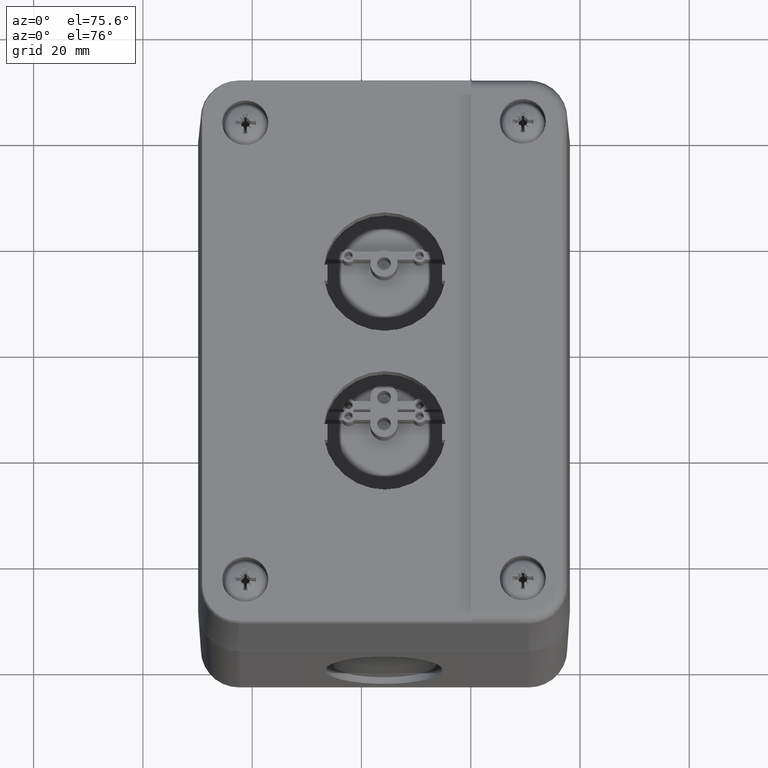
[diagram: clean part render]
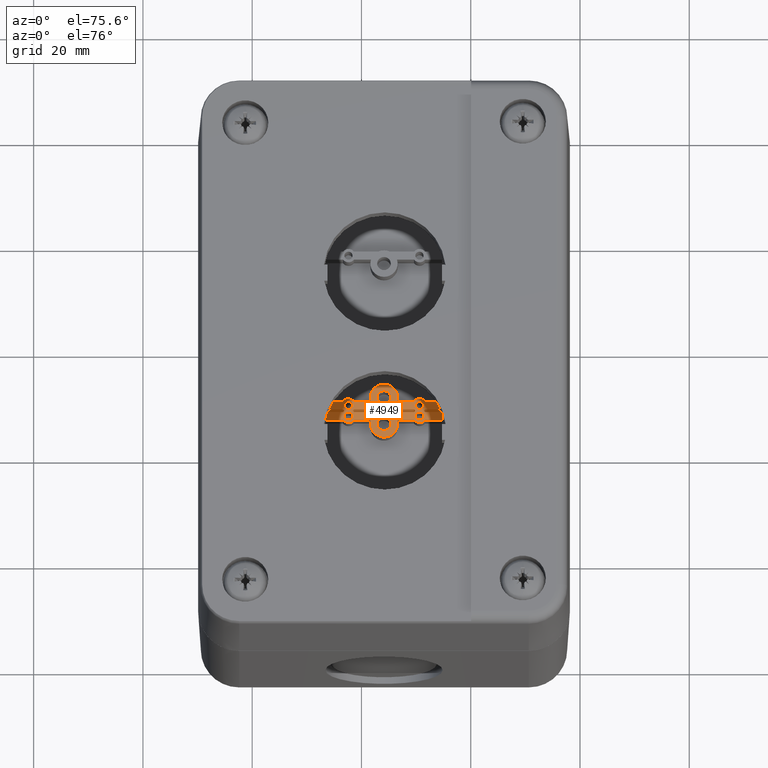
[diagram: same view with one face highlighted and labeled with its STEP entity id]
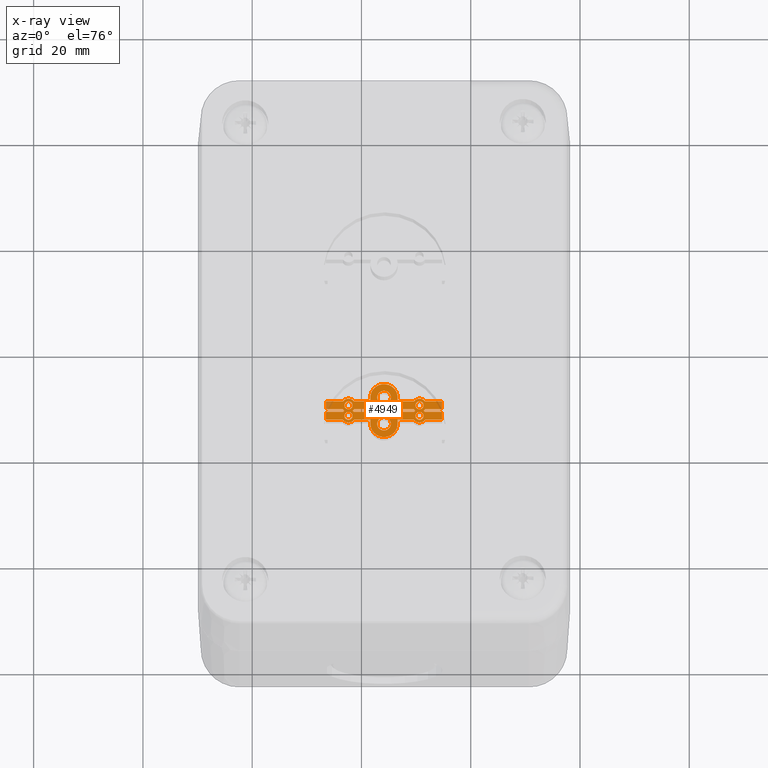
[diagram: x-ray of the same camera — body ghosted, the highlighted face saturated]
A machine part, auxiliary view. The second image highlights one B-rep face of the part: STEP entity #4949.
The next image is the same camera in x-ray: the body ghosted, the highlighted face saturated — about 4% of this face is hidden behind the body in this view.
In plain terms, the highlighted planar face has unit normal (0, 0, 1).
Its self-contained STEP definition (entity closure, byte-faithful):
#3449=CARTESIAN_POINT('',(-14.622549297178537,25.422435103463556,5.700000000000014));
#3450=VERTEX_POINT('',#3449);
#3451=CARTESIAN_POINT('',(-15.872549297178537,25.422435103463556,5.700000000000014));
#3452=DIRECTION('',(0.0,0.0,-1.0));
#3453=DIRECTION('',(-1.0,0.0,0.0));
#3454=AXIS2_PLACEMENT_3D('',#3451,#3452,#3453);
#3455=CIRCLE('',#3454,1.250000000000000);
#3456=EDGE_CURVE('',#3450,#3450,#3455,.T.);
#3477=CARTESIAN_POINT('',(-14.622549297178535,30.422435103463560,5.700000000000014));
#3478=VERTEX_POINT('',#3477);
#3479=CARTESIAN_POINT('',(-15.872549297178535,30.422435103463560,5.700000000000014));
#3480=DIRECTION('',(0.0,0.0,-1.0));
#3481=DIRECTION('',(-1.0,0.0,0.0));
#3482=AXIS2_PLACEMENT_3D('',#3479,#3480,#3481);
#3483=CIRCLE('',#3482,1.250000000000000);
#3484=EDGE_CURVE('',#3478,#3478,#3483,.T.);
#3505=CARTESIAN_POINT('',(-21.622549297178537,26.922435103463570,5.700000000000014));
#3506=VERTEX_POINT('',#3505);
#3507=CARTESIAN_POINT('',(-22.372549297178537,26.922435103463570,5.700000000000014));
#3508=DIRECTION('',(0.0,0.0,-1.0));
#3509=DIRECTION('',(-1.0,0.0,0.0));
#3510=AXIS2_PLACEMENT_3D('',#3507,#3508,#3509);
#3511=CIRCLE('',#3510,0.750000000000000);
#3512=EDGE_CURVE('',#3506,#3506,#3511,.T.);
#3533=CARTESIAN_POINT('',(-8.622549297178530,26.922435103463549,5.700000000000014));
#3534=VERTEX_POINT('',#3533);
#3535=CARTESIAN_POINT('',(-9.372549297178530,26.922435103463549,5.700000000000014));
#3536=DIRECTION('',(0.0,0.0,-1.0));
#3537=DIRECTION('',(-1.0,0.0,0.0));
#3538=AXIS2_PLACEMENT_3D('',#3535,#3536,#3537);
#3539=CIRCLE('',#3538,0.750000000000000);
#3540=EDGE_CURVE('',#3534,#3534,#3539,.T.);
#3561=CARTESIAN_POINT('',(-21.622549297178537,28.922435103463549,5.700000000000014));
#3562=VERTEX_POINT('',#3561);
#3563=CARTESIAN_POINT('',(-22.372549297178537,28.922435103463549,5.700000000000014));
#3564=DIRECTION('',(0.0,0.0,-1.0));
#3565=DIRECTION('',(-1.0,0.0,0.0));
#3566=AXIS2_PLACEMENT_3D('',#3563,#3564,#3565);
#3567=CIRCLE('',#3566,0.750000000000000);
#3568=EDGE_CURVE('',#3562,#3562,#3567,.T.);
#3589=CARTESIAN_POINT('',(-8.622549297178530,28.922435103463560,5.700000000000014));
#3590=VERTEX_POINT('',#3589);
#3591=CARTESIAN_POINT('',(-9.372549297178530,28.922435103463560,5.700000000000014));
#3592=DIRECTION('',(0.0,0.0,-1.0));
#3593=DIRECTION('',(-1.0,0.0,0.0));
#3594=AXIS2_PLACEMENT_3D('',#3591,#3592,#3593);
#3595=CIRCLE('',#3594,0.750000000000000);
#3596=EDGE_CURVE('',#3590,#3590,#3595,.T.);
#3617=CARTESIAN_POINT('',(-10.372549297178528,28.172435103463556,5.700000000000014));
#3618=VERTEX_POINT('',#3617);
#3619=CARTESIAN_POINT('',(-10.122549297178489,27.922435103463581,5.700000000000014));
#3620=VERTEX_POINT('',#3619);
#3621=CARTESIAN_POINT('',(-9.372549297178530,28.922435103463560,5.700000000000014));
#3622=DIRECTION('',(0.0,0.0,1.0));
#3623=DIRECTION('',(0.799999999999999,0.600000000000001,0.0));
#3624=AXIS2_PLACEMENT_3D('',#3621,#3622,#3623);
#3625=CIRCLE('',#3624,1.250000000000000);
#3626=EDGE_CURVE('',#3618,#3620,#3625,.T.);
#3659=CARTESIAN_POINT('',(-10.372549297178528,27.672435103463549,5.700000000000014));
#3660=VERTEX_POINT('',#3659);
#3661=CARTESIAN_POINT('',(-9.372549297178530,26.922435103463549,5.700000000000014));
#3662=DIRECTION('',(0.0,0.0,1.0));
#3663=DIRECTION('',(0.599999999999966,-0.800000000000025,0.0));
#3664=AXIS2_PLACEMENT_3D('',#3661,#3662,#3663);
#3665=CIRCLE('',#3664,1.250000000000000);
#3666=EDGE_CURVE('',#3620,#3660,#3665,.T.);
#3692=CARTESIAN_POINT('',(-13.372858695775030,27.672435103463556,5.700000000000014));
#3693=VERTEX_POINT('',#3692);
#3694=CARTESIAN_POINT('',(-10.372549297178528,27.672435103463549,5.700000000000014));
#3695=DIRECTION('',(-1.0,0.0,0.0));
#3696=VECTOR('',#3695,3.000309398596501);
#3697=LINE('',#3694,#3696);
#3698=EDGE_CURVE('',#3660,#3693,#3697,.T.);
#3723=CARTESIAN_POINT('',(-13.372858695775030,28.172435103463553,5.700000000000014));
#3724=VERTEX_POINT('',#3723);
#3725=CARTESIAN_POINT('',(-13.372858695775030,27.672435103463556,5.700000000000014));
#3726=DIRECTION('',(0.0,1.0,0.0));
#3727=VECTOR('',#3726,0.499999999999996);
#3728=LINE('',#3725,#3727);
#3729=EDGE_CURVE('',#3693,#3724,#3728,.T.);
#3754=CARTESIAN_POINT('',(-13.372858695775030,28.172435103463553,5.700000000000014));
#3755=DIRECTION('',(1.0,0.0,0.0));
#3756=VECTOR('',#3755,3.000309398596501);
#3757=LINE('',#3754,#3756);
#3758=EDGE_CURVE('',#3724,#3618,#3757,.T.);
#3776=CARTESIAN_POINT('',(-21.622549297178523,27.922435103463563,5.700000000000014));
#3777=VERTEX_POINT('',#3776);
#3778=CARTESIAN_POINT('',(-21.372549297178537,28.172435103463553,5.700000000000014));
#3779=VERTEX_POINT('',#3778);
#3780=CARTESIAN_POINT('',(-22.372549297178537,28.922435103463549,5.700000000000014));
#3781=DIRECTION('',(0.0,0.0,1.0));
#3782=DIRECTION('',(-0.600000000000013,0.799999999999991,0.0));
#3783=AXIS2_PLACEMENT_3D('',#3780,#3781,#3782);
#3784=CIRCLE('',#3783,1.250000000000000);
#3785=EDGE_CURVE('',#3777,#3779,#3784,.T.);
#3818=CARTESIAN_POINT('',(-18.372392784973048,28.172435103463549,5.700000000000014));
#3819=VERTEX_POINT('',#3818);
#3820=CARTESIAN_POINT('',(-21.372549297178537,28.172435103463553,5.700000000000014));
#3821=DIRECTION('',(1.0,0.0,0.0));
#3822=VECTOR('',#3821,3.000156512205489);
#3823=LINE('',#3820,#3822);
#3824=EDGE_CURVE('',#3779,#3819,#3823,.T.);
#3849=CARTESIAN_POINT('',(-18.372392784973048,27.672435103463570,5.700000000000014));
#3850=VERTEX_POINT('',#3849);
#3851=CARTESIAN_POINT('',(-18.372392784973048,28.172435103463549,5.700000000000014));
#3852=DIRECTION('',(0.0,-1.0,0.0));
#3853=VECTOR('',#3852,0.499999999999979);
#3854=LINE('',#3851,#3853);
#3855=EDGE_CURVE('',#3819,#3850,#3854,.T.);
#3880=CARTESIAN_POINT('',(-21.372549297178537,27.672435103463570,5.700000000000014));
#3881=VERTEX_POINT('',#3880);
#3882=CARTESIAN_POINT('',(-18.372392784973048,27.672435103463570,5.700000000000014));
#3883=DIRECTION('',(-1.0,0.0,0.0));
#3884=VECTOR('',#3883,3.000156512205489);
#3885=LINE('',#3882,#3884);
#3886=EDGE_CURVE('',#3850,#3881,#3885,.T.);
#3911=CARTESIAN_POINT('',(-22.372549297178537,26.922435103463570,5.700000000000014));
#3912=DIRECTION('',(0.0,0.0,1.0));
#3913=DIRECTION('',(-0.800000000000001,-0.599999999999998,0.0));
#3914=AXIS2_PLACEMENT_3D('',#3911,#3912,#3913);
#3915=CIRCLE('',#3914,1.250000000000000);
#3916=EDGE_CURVE('',#3881,#3777,#3915,.T.);
#3935=CARTESIAN_POINT('',(-18.372392784973048,29.672435103463538,5.700000000000014));
#3936=VERTEX_POINT('',#3935);
#3937=CARTESIAN_POINT('',(-18.372392784973048,30.450408957888108,5.700000000000014));
#3938=VERTEX_POINT('',#3937);
#3939=CARTESIAN_POINT('',(-18.372392784973048,29.672435103463538,5.700000000000014));
#3940=DIRECTION('',(0.0,1.0,0.0));
#3941=VECTOR('',#3940,0.777973854424570);
#3942=LINE('',#3939,#3941);
#3943=EDGE_CURVE('',#3936,#3938,#3942,.T.);
#3975=CARTESIAN_POINT('',(-13.372858695775030,30.461765718192851,5.700000000000014));
#3976=VERTEX_POINT('',#3975);
#3977=CARTESIAN_POINT('',(-15.872549297178535,30.422435103463560,5.700000000000014));
#3978=DIRECTION('',(3.652894E-030,-5.747534E-032,-1.0));
#3979=DIRECTION('',(0.999876240561402,-0.015732245891694,3.653346E-030));
#3980=AXIS2_PLACEMENT_3D('',#3977,#3978,#3979);
#3981=CIRCLE('',#3980,2.500000000000000);
#3982=EDGE_CURVE('',#3938,#3976,#3981,.T.);
#4008=CARTESIAN_POINT('',(-13.372858695775030,29.672435103463549,5.700000000000014));
#4009=VERTEX_POINT('',#4008);
#4010=CARTESIAN_POINT('',(-13.372858695775030,30.461765718192851,5.700000000000014));
#4011=DIRECTION('',(0.0,-1.0,0.0));
#4012=VECTOR('',#4011,0.789330614729302);
#4013=LINE('',#4010,#4012);
#4014=EDGE_CURVE('',#3976,#4009,#4013,.T.);
#4039=CARTESIAN_POINT('',(-10.372549297178534,29.672435103463556,5.700000000000014));
#4040=VERTEX_POINT('',#4039);
#4041=CARTESIAN_POINT('',(-13.372858695775030,29.672435103463549,5.700000000000014));
#4042=DIRECTION('',(1.0,0.0,0.0));
#4043=VECTOR('',#4042,3.000309398596496);
#4044=LINE('',#4041,#4043);
#4045=EDGE_CURVE('',#4009,#4040,#4044,.T.);
#4070=CARTESIAN_POINT('',(-8.372549297178530,29.672435103463549,5.700000000000014));
#4071=VERTEX_POINT('',#4070);
#4072=CARTESIAN_POINT('',(-9.372549297178530,28.922435103463560,5.700000000000014));
#4073=DIRECTION('',(2.084208E-030,1.563156E-030,-1.0));
#4074=DIRECTION('',(0.800000000000004,0.599999999999995,2.605260E-030));
#4075=AXIS2_PLACEMENT_3D('',#4072,#4073,#4074);
#4076=CIRCLE('',#4075,1.250000000000000);
#4077=EDGE_CURVE('',#4040,#4071,#4076,.T.);
#4103=CARTESIAN_POINT('',(-5.222549297178539,29.672435103463553,5.700000000000014));
#4104=VERTEX_POINT('',#4103);
#4105=CARTESIAN_POINT('',(-8.372549297178530,29.672435103463549,5.700000000000014));
#4106=DIRECTION('',(1.0,0.0,0.0));
#4107=VECTOR('',#4106,3.149999999999992);
#4108=LINE('',#4105,#4107);
#4109=EDGE_CURVE('',#4071,#4104,#4108,.T.);
#4134=CARTESIAN_POINT('',(-5.222549297178536,28.172435103463556,5.700000000000014));
#4135=VERTEX_POINT('',#4134);
#4136=CARTESIAN_POINT('',(-5.222549297178539,29.672435103463553,5.700000000000014));
#4137=DIRECTION('',(0.0,-1.0,0.0));
#4138=VECTOR('',#4137,1.499999999999996);
#4139=LINE('',#4136,#4138);
#4140=EDGE_CURVE('',#4104,#4135,#4139,.T.);
#4165=CARTESIAN_POINT('',(-8.372549297178528,28.172435103463563,5.700000000000014));
#4166=VERTEX_POINT('',#4165);
#4167=CARTESIAN_POINT('',(-5.222549297178536,28.172435103463556,5.700000000000014));
#4168=DIRECTION('',(-1.0,0.0,0.0));
#4169=VECTOR('',#4168,3.149999999999992);
#4170=LINE('',#4167,#4169);
#4171=EDGE_CURVE('',#4135,#4166,#4170,.T.);
#4196=CARTESIAN_POINT('',(-8.622549297178537,27.922435103463556,5.700000000000014));
#4197=VERTEX_POINT('',#4196);
#4198=CARTESIAN_POINT('',(-9.372549297178530,28.922435103463560,5.700000000000014));
#4199=DIRECTION('',(1.561428E-030,-2.081904E-030,-1.0));
#4200=DIRECTION('',(0.599999999999994,-0.800000000000004,2.602380E-030));
#4201=AXIS2_PLACEMENT_3D('',#4198,#4199,#4200);
#4202=CIRCLE('',#4201,1.250000000000000);
#4203=EDGE_CURVE('',#4166,#4197,#4202,.T.);
#4229=CARTESIAN_POINT('',(-8.372549297178528,27.672435103463545,5.700000000000014));
#4230=VERTEX_POINT('',#4229);
#4231=CARTESIAN_POINT('',(-9.372549297178530,26.922435103463549,5.700000000000014));
#4232=DIRECTION('',(2.084208E-030,1.563156E-030,-1.0));
#4233=DIRECTION('',(0.800000000000002,0.599999999999998,2.605260E-030));
#4234=AXIS2_PLACEMENT_3D('',#4231,#4232,#4233);
#4235=CIRCLE('',#4234,1.250000000000000);
#4236=EDGE_CURVE('',#4197,#4230,#4235,.T.);
#4262=CARTESIAN_POINT('',(-5.222549297178536,27.672435103463545,5.700000000000014));
#4263=VERTEX_POINT('',#4262);
#4264=CARTESIAN_POINT('',(-8.372549297178528,27.672435103463545,5.700000000000014));
#4265=DIRECTION('',(1.0,0.0,0.0));
#4266=VECTOR('',#4265,3.149999999999992);
#4267=LINE('',#4264,#4266);
#4268=EDGE_CURVE('',#4230,#4263,#4267,.T.);
#4293=CARTESIAN_POINT('',(-5.222549297178539,26.172435103463553,5.700000000000014));
#4294=VERTEX_POINT('',#4293);
#4295=CARTESIAN_POINT('',(-5.222549297178536,27.672435103463545,5.700000000000014));
#4296=DIRECTION('',(0.0,-1.0,0.0));
#4297=VECTOR('',#4296,1.499999999999993);
#4298=LINE('',#4295,#4297);
#4299=EDGE_CURVE('',#4263,#4294,#4298,.T.);
#4324=CARTESIAN_POINT('',(-8.372549297178532,26.172435103463560,5.700000000000014));
#4325=VERTEX_POINT('',#4324);
#4326=CARTESIAN_POINT('',(-5.222549297178539,26.172435103463553,5.700000000000014));
#4327=DIRECTION('',(-1.0,0.0,0.0));
#4328=VECTOR('',#4327,3.149999999999992);
#4329=LINE('',#4326,#4328);
#4330=EDGE_CURVE('',#4294,#4325,#4329,.T.);
#4355=CARTESIAN_POINT('',(-10.372549297178535,26.172435103463553,5.700000000000014));
#4356=VERTEX_POINT('',#4355);
#4357=CARTESIAN_POINT('',(-9.372549297178530,26.922435103463549,5.700000000000014));
#4358=DIRECTION('',(2.084208E-030,1.563156E-030,-1.000000000000000));
#4359=DIRECTION('',(-0.800000000000002,-0.599999999999997,-2.605260E-030));
#4360=AXIS2_PLACEMENT_3D('',#4357,#4358,#4359);
#4361=CIRCLE('',#4360,1.250000000000000);
#4362=EDGE_CURVE('',#4325,#4356,#4361,.T.);
#4388=CARTESIAN_POINT('',(-13.372858695775030,26.172435103463563,5.700000000000014));
#4389=VERTEX_POINT('',#4388);
#4390=CARTESIAN_POINT('',(-10.372549297178535,26.172435103463553,5.700000000000014));
#4391=DIRECTION('',(-1.0,0.0,0.0));
#4392=VECTOR('',#4391,3.000309398596494);
#4393=LINE('',#4390,#4392);
#4394=EDGE_CURVE('',#4356,#4389,#4393,.T.);
#4419=CARTESIAN_POINT('',(-13.372858695775030,25.383104488734460,5.700000000000014));
#4420=VERTEX_POINT('',#4419);
#4421=CARTESIAN_POINT('',(-13.372858695775030,26.172435103463563,5.700000000000014));
#4422=DIRECTION('',(0.0,-1.0,0.0));
#4423=VECTOR('',#4422,0.789330614729103);
#4424=LINE('',#4421,#4423);
#4425=EDGE_CURVE('',#4389,#4420,#4424,.T.);
#4450=CARTESIAN_POINT('',(-18.372392784973048,25.394461249038834,5.700000000000014));
#4451=VERTEX_POINT('',#4450);
#4452=CARTESIAN_POINT('',(-15.872549297178537,25.422435103463556,5.700000000000014));
#4453=DIRECTION('',(3.650984E-030,-4.085540E-032,-1.0));
#4454=DIRECTION('',(-0.999937395117804,0.011189541769888,-3.651213E-030));
#4455=AXIS2_PLACEMENT_3D('',#4452,#4453,#4454);
#4456=CIRCLE('',#4455,2.500000000000000);
#4457=EDGE_CURVE('',#4420,#4451,#4456,.T.);
#4483=CARTESIAN_POINT('',(-18.372392784973048,26.172435103463577,5.700000000000014));
#4484=VERTEX_POINT('',#4483);
#4485=CARTESIAN_POINT('',(-18.372392784973048,25.394461249038834,5.700000000000014));
#4486=DIRECTION('',(0.0,1.0,0.0));
#4487=VECTOR('',#4486,0.777973854424744);
#4488=LINE('',#4485,#4487);
#4489=EDGE_CURVE('',#4451,#4484,#4488,.T.);
#4514=CARTESIAN_POINT('',(-21.372549297178530,26.172435103463584,5.700000000000014));
#4515=VERTEX_POINT('',#4514);
#4516=CARTESIAN_POINT('',(-18.372392784973048,26.172435103463577,5.700000000000014));
#4517=DIRECTION('',(-1.0,0.0,0.0));
#4518=VECTOR('',#4517,3.000156512205482);
#4519=LINE('',#4516,#4518);
#4520=EDGE_CURVE('',#4484,#4515,#4519,.T.);
#4545=CARTESIAN_POINT('',(-23.372549297178544,26.172435103463577,5.700000000000014));
#4546=VERTEX_POINT('',#4545);
#4547=CARTESIAN_POINT('',(-22.372549297178537,26.922435103463570,5.700000000000014));
#4548=DIRECTION('',(2.084208E-030,1.563156E-030,-1.0));
#4549=DIRECTION('',(-0.800000000000004,-0.599999999999994,-2.605260E-030));
#4550=AXIS2_PLACEMENT_3D('',#4547,#4548,#4549);
#4551=CIRCLE('',#4550,1.250000000000000);
#4552=EDGE_CURVE('',#4515,#4546,#4551,.T.);
#4578=CARTESIAN_POINT('',(-26.522549297178550,26.172435103463584,5.700000000000014));
#4579=VERTEX_POINT('',#4578);
#4580=CARTESIAN_POINT('',(-23.372549297178544,26.172435103463577,5.700000000000014));
#4581=DIRECTION('',(-1.0,0.0,0.0));
#4582=VECTOR('',#4581,3.150000000000006);
#4583=LINE('',#4580,#4582);
#4584=EDGE_CURVE('',#4546,#4579,#4583,.T.);
#4609=CARTESIAN_POINT('',(-26.522549297178550,27.672435103463581,5.700000000000014));
#4610=VERTEX_POINT('',#4609);
#4611=CARTESIAN_POINT('',(-26.522549297178550,26.172435103463584,5.700000000000014));
#4612=DIRECTION('',(0.0,1.0,0.0));
#4613=VECTOR('',#4612,1.499999999999996);
#4614=LINE('',#4611,#4613);
#4615=EDGE_CURVE('',#4579,#4610,#4614,.T.);
#4640=CARTESIAN_POINT('',(-23.372549297178537,27.672435103463574,5.700000000000014));
#4641=VERTEX_POINT('',#4640);
#4642=CARTESIAN_POINT('',(-26.522549297178550,27.672435103463581,5.700000000000014));
#4643=DIRECTION('',(1.0,0.0,0.0));
#4644=VECTOR('',#4643,3.150000000000013);
#4645=LINE('',#4642,#4644);
#4646=EDGE_CURVE('',#4610,#4641,#4645,.T.);
#4671=CARTESIAN_POINT('',(-23.122549297178526,27.922435103463581,5.700000000000014));
#4672=VERTEX_POINT('',#4671);
#4673=CARTESIAN_POINT('',(-22.372549297178537,26.922435103463570,5.700000000000014));
#4674=DIRECTION('',(1.561428E-030,-2.081904E-030,-1.0));
#4675=DIRECTION('',(-0.599999999999990,0.800000000000007,-2.602380E-030));
#4676=AXIS2_PLACEMENT_3D('',#4673,#4674,#4675);
#4677=CIRCLE('',#4676,1.250000000000000);
#4678=EDGE_CURVE('',#4641,#4672,#4677,.T.);
#4704=CARTESIAN_POINT('',(-23.372549297178537,28.172435103463549,5.700000000000014));
#4705=VERTEX_POINT('',#4704);
#4706=CARTESIAN_POINT('',(-22.372549297178537,28.922435103463549,5.700000000000014));
#4707=DIRECTION('',(2.084208E-030,1.563156E-030,-1.000000000000000));
#4708=DIRECTION('',(-0.799999999999998,-0.600000000000002,-2.605260E-030));
#4709=AXIS2_PLACEMENT_3D('',#4706,#4707,#4708);
#4710=CIRCLE('',#4709,1.250000000000000);
#4711=EDGE_CURVE('',#4672,#4705,#4710,.T.);
#4737=CARTESIAN_POINT('',(-26.522549297178550,28.172435103463545,5.700000000000014));
#4738=VERTEX_POINT('',#4737);
#4739=CARTESIAN_POINT('',(-23.372549297178537,28.172435103463549,5.700000000000014));
#4740=DIRECTION('',(-1.0,0.0,0.0));
#4741=VECTOR('',#4740,3.150000000000013);
#4742=LINE('',#4739,#4741);
#4743=EDGE_CURVE('',#4705,#4738,#4742,.T.);
#4768=CARTESIAN_POINT('',(-26.522549297178550,29.672435103463542,5.700000000000014));
#4769=VERTEX_POINT('',#4768);
#4770=CARTESIAN_POINT('',(-26.522549297178550,28.172435103463545,5.700000000000014));
#4771=DIRECTION('',(0.0,1.0,0.0));
#4772=VECTOR('',#4771,1.499999999999996);
#4773=LINE('',#4770,#4772);
#4774=EDGE_CURVE('',#4738,#4769,#4773,.T.);
#4799=CARTESIAN_POINT('',(-23.372549297178544,29.672435103463542,5.700000000000014));
#4800=VERTEX_POINT('',#4799);
#4801=CARTESIAN_POINT('',(-26.522549297178550,29.672435103463542,5.700000000000014));
#4802=DIRECTION('',(1.0,0.0,0.0));
#4803=VECTOR('',#4802,3.150000000000006);
#4804=LINE('',#4801,#4803);
#4805=EDGE_CURVE('',#4769,#4800,#4804,.T.);
#4830=CARTESIAN_POINT('',(-21.372549297178530,29.672435103463538,5.700000000000014));
#4831=VERTEX_POINT('',#4830);
#4832=CARTESIAN_POINT('',(-22.372549297178537,28.922435103463549,5.700000000000014));
#4833=DIRECTION('',(2.084208E-030,1.563156E-030,-1.0));
#4834=DIRECTION('',(0.800000000000007,0.599999999999990,2.605260E-030));
#4835=AXIS2_PLACEMENT_3D('',#4832,#4833,#4834);
#4836=CIRCLE('',#4835,1.250000000000000);
#4837=EDGE_CURVE('',#4800,#4831,#4836,.T.);
#4863=CARTESIAN_POINT('',(-21.372549297178530,29.672435103463538,5.700000000000014));
#4864=DIRECTION('',(1.0,0.0,0.0));
#4865=VECTOR('',#4864,3.000156512205482);
#4866=LINE('',#4863,#4865);
#4867=EDGE_CURVE('',#4831,#3936,#4866,.T.);
#4880=CARTESIAN_POINT('',(-15.872466772068634,27.922435103463556,5.700000000000014));
#4881=DIRECTION('',(0.0,0.0,1.0));
#4882=DIRECTION('',(1.0,0.0,0.0));
#4883=AXIS2_PLACEMENT_3D('',#4880,#4881,#4882);
#4884=PLANE('',#4883);
#4885=ORIENTED_EDGE('',*,*,#3943,.F.);
#4886=ORIENTED_EDGE('',*,*,#4867,.F.);
#4887=ORIENTED_EDGE('',*,*,#4837,.F.);
#4888=ORIENTED_EDGE('',*,*,#4805,.F.);
#4889=ORIENTED_EDGE('',*,*,#4774,.F.);
#4890=ORIENTED_EDGE('',*,*,#4743,.F.);
#4891=ORIENTED_EDGE('',*,*,#4711,.F.);
#4892=ORIENTED_EDGE('',*,*,#4678,.F.);
#4893=ORIENTED_EDGE('',*,*,#4646,.F.);
#4894=ORIENTED_EDGE('',*,*,#4615,.F.);
#4895=ORIENTED_EDGE('',*,*,#4584,.F.);
#4896=ORIENTED_EDGE('',*,*,#4552,.F.);
#4897=ORIENTED_EDGE('',*,*,#4520,.F.);
#4898=ORIENTED_EDGE('',*,*,#4489,.F.);
#4899=ORIENTED_EDGE('',*,*,#4457,.F.);
#4900=ORIENTED_EDGE('',*,*,#4425,.F.);
#4901=ORIENTED_EDGE('',*,*,#4394,.F.);
#4902=ORIENTED_EDGE('',*,*,#4362,.F.);
#4903=ORIENTED_EDGE('',*,*,#4330,.F.);
#4904=ORIENTED_EDGE('',*,*,#4299,.F.);
#4905=ORIENTED_EDGE('',*,*,#4268,.F.);
#4906=ORIENTED_EDGE('',*,*,#4236,.F.);
#4907=ORIENTED_EDGE('',*,*,#4203,.F.);
#4908=ORIENTED_EDGE('',*,*,#4171,.F.);
#4909=ORIENTED_EDGE('',*,*,#4140,.F.);
#4910=ORIENTED_EDGE('',*,*,#4109,.F.);
#4911=ORIENTED_EDGE('',*,*,#4077,.F.);
#4912=ORIENTED_EDGE('',*,*,#4045,.F.);
#4913=ORIENTED_EDGE('',*,*,#4014,.F.);
#4914=ORIENTED_EDGE('',*,*,#3982,.F.);
#4915=EDGE_LOOP('',(#4885,#4886,#4887,#4888,#4889,#4890,#4891,#4892,#4893,#4894,#4895,#4896,#4897,#4898,#4899,#4900,#4901,#4902,#4903,#4904,#4905,#4906,#4907,#4908,#4909,#4910,#4911,#4912,#4913,#4914));
#4916=FACE_OUTER_BOUND('',#4915,.T.);
#4917=ORIENTED_EDGE('',*,*,#3456,.T.);
#4918=EDGE_LOOP('',(#4917));
#4919=FACE_BOUND('',#4918,.T.);
#4920=ORIENTED_EDGE('',*,*,#3484,.T.);
#4921=EDGE_LOOP('',(#4920));
#4922=FACE_BOUND('',#4921,.T.);
#4923=ORIENTED_EDGE('',*,*,#3512,.T.);
#4924=EDGE_LOOP('',(#4923));
#4925=FACE_BOUND('',#4924,.T.);
#4926=ORIENTED_EDGE('',*,*,#3540,.T.);
#4927=EDGE_LOOP('',(#4926));
#4928=FACE_BOUND('',#4927,.T.);
#4929=ORIENTED_EDGE('',*,*,#3568,.T.);
#4930=EDGE_LOOP('',(#4929));
#4931=FACE_BOUND('',#4930,.T.);
#4932=ORIENTED_EDGE('',*,*,#3596,.T.);
#4933=EDGE_LOOP('',(#4932));
#4934=FACE_BOUND('',#4933,.T.);
#4935=ORIENTED_EDGE('',*,*,#3626,.T.);
#4936=ORIENTED_EDGE('',*,*,#3666,.T.);
#4937=ORIENTED_EDGE('',*,*,#3698,.T.);
#4938=ORIENTED_EDGE('',*,*,#3729,.T.);
#4939=ORIENTED_EDGE('',*,*,#3758,.T.);
#4940=EDGE_LOOP('',(#4935,#4936,#4937,#4938,#4939));
#4941=FACE_BOUND('',#4940,.T.);
#4942=ORIENTED_EDGE('',*,*,#3785,.T.);
#4943=ORIENTED_EDGE('',*,*,#3824,.T.);
#4944=ORIENTED_EDGE('',*,*,#3855,.T.);
#4945=ORIENTED_EDGE('',*,*,#3886,.T.);
#4946=ORIENTED_EDGE('',*,*,#3916,.T.);
#4947=EDGE_LOOP('',(#4942,#4943,#4944,#4945,#4946));
#4948=FACE_BOUND('',#4947,.T.);
#4949=ADVANCED_FACE('',(#4916,#4919,#4922,#4925,#4928,#4931,#4934,#4941,#4948),#4884,.T.);